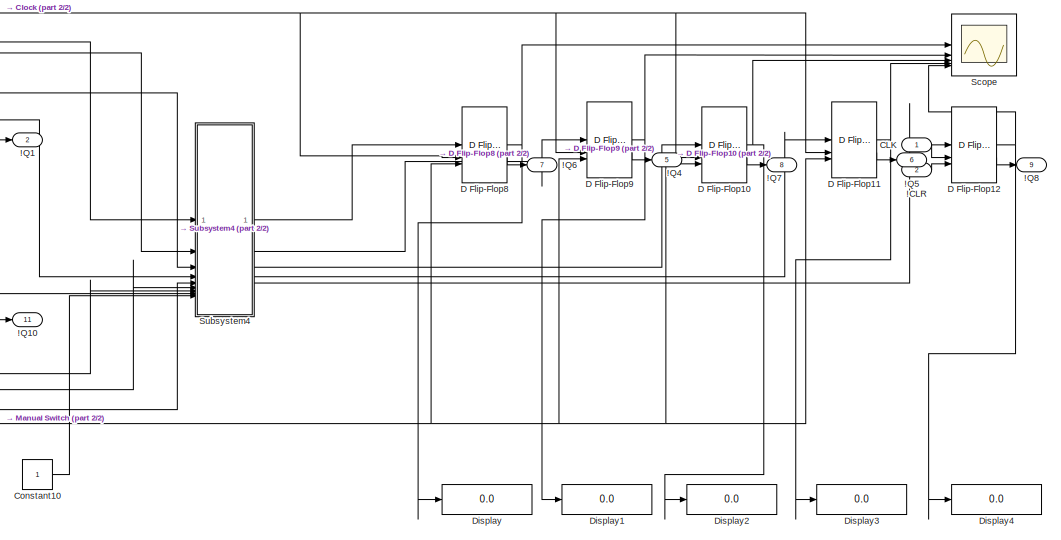
[diagram: root canvas - part 1/2, right side, full height]
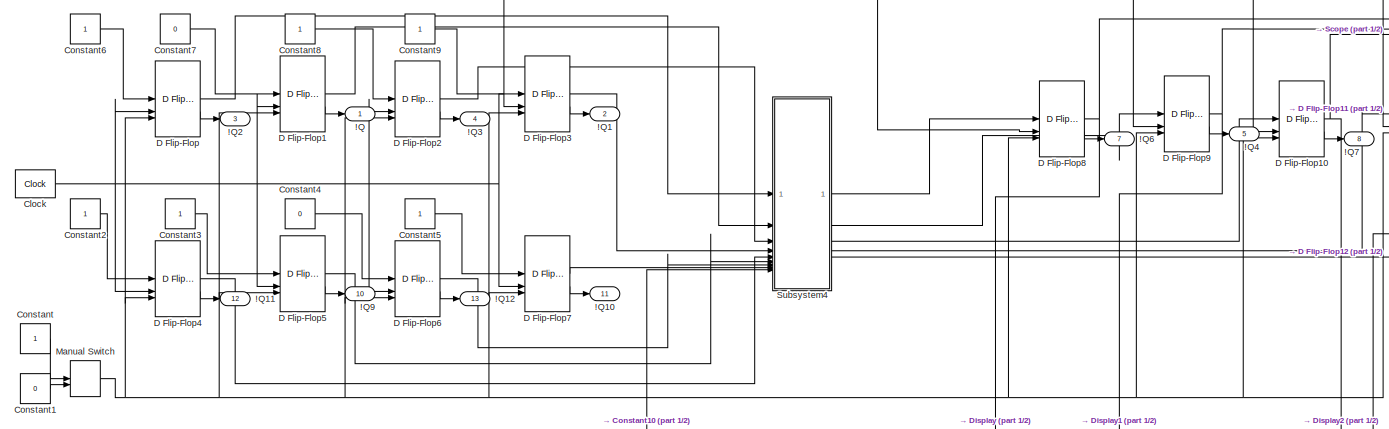
[diagram: root canvas - part 2/2, most of the canvas]
MODEL slx_1d598019fac1
KIND model
CONFIG AbsTol = auto
CONFIG EnableMultiTasking = off
CONFIG FixedStep = auto
CONFIG MaxStep = auto
CONFIG MinStep = auto
CONFIG RelTol = 1e-3
CONFIG SampleTimeConstraint = Unconstrained
CONFIG SolverName = VariableStepAuto
CONFIG StartTime = 0.0
CONFIG StopTime = 10.0
BLOCK [Inport] !CLR
  Port = 2
BLOCK [Outport] !Q
BLOCK [Outport] !Q1
  Port = 2
BLOCK [Outport] !Q10
  Port = 11
BLOCK [Outport] !Q11
  Port = 12
BLOCK [Outport] !Q12
  Port = 13
BLOCK [Outport] !Q2
  Port = 3
BLOCK [Outport] !Q3
  Port = 4
BLOCK [Outport] !Q4
  Port = 5
BLOCK [Outport] !Q5
  Port = 6
BLOCK [Outport] !Q6
  Port = 7
BLOCK [Outport] !Q7
  Port = 8
BLOCK [Outport] !Q8
  Port = 9
BLOCK [Outport] !Q9
  Port = 10
BLOCK [Inport] CLK
BLOCK [Reference] Clock  REF=simulink_extras/Flip Flops/Clock
  SourceBlock = simulink_extras/Flip Flops/Clock
  SourceType = Digital clock
BLOCK [Constant] Constant
  OutDataTypeStr = boolean
BLOCK [Constant] Constant1
  OutDataTypeStr = boolean
  Value = 0
BLOCK [Constant] Constant10
  OutDataTypeStr = boolean
BLOCK [Constant] Constant2
  OutDataTypeStr = boolean
BLOCK [Constant] Constant3
  OutDataTypeStr = boolean
BLOCK [Constant] Constant4
  OutDataTypeStr = boolean
  Value = 0
BLOCK [Constant] Constant5
  OutDataTypeStr = boolean
BLOCK [Constant] Constant6
  OutDataTypeStr = boolean
BLOCK [Constant] Constant7
  OutDataTypeStr = boolean
  Value = 0
BLOCK [Constant] Constant8
  OutDataTypeStr = boolean
BLOCK [Constant] Constant9
  OutDataTypeStr = boolean
BLOCK [Reference] D Flip-Flop  REF=simulink_extras/Flip Flops/D Flip-Flop
  SourceBlock = simulink_extras/Flip Flops/D Flip-Flop
  SourceType = DFlipFlop
BLOCK [Reference] D Flip-Flop1  REF=simulink_extras/Flip Flops/D Flip-Flop
  SourceBlock = simulink_extras/Flip Flops/D Flip-Flop
  SourceType = DFlipFlop
BLOCK [Reference] D Flip-Flop10  REF=simulink_extras/Flip Flops/D Flip-Flop
  SourceBlock = simulink_extras/Flip Flops/D Flip-Flop
  SourceType = DFlipFlop
BLOCK [Reference] D Flip-Flop11  REF=simulink_extras/Flip Flops/D Flip-Flop
  SourceBlock = simulink_extras/Flip Flops/D Flip-Flop
  SourceType = DFlipFlop
BLOCK [Reference] D Flip-Flop12  REF=simulink_extras/Flip Flops/D Flip-Flop
  SourceBlock = simulink_extras/Flip Flops/D Flip-Flop
  SourceType = DFlipFlop
BLOCK [Reference] D Flip-Flop2  REF=simulink_extras/Flip Flops/D Flip-Flop
  SourceBlock = simulink_extras/Flip Flops/D Flip-Flop
  SourceType = DFlipFlop
BLOCK [Reference] D Flip-Flop3  REF=simulink_extras/Flip Flops/D Flip-Flop
  SourceBlock = simulink_extras/Flip Flops/D Flip-Flop
  SourceType = DFlipFlop
BLOCK [Reference] D Flip-Flop4  REF=simulink_extras/Flip Flops/D Flip-Flop
  SourceBlock = simulink_extras/Flip Flops/D Flip-Flop
  SourceType = DFlipFlop
BLOCK [Reference] D Flip-Flop5  REF=simulink_extras/Flip Flops/D Flip-Flop
  SourceBlock = simulink_extras/Flip Flops/D Flip-Flop
  SourceType = DFlipFlop
BLOCK [Reference] D Flip-Flop6  REF=simulink_extras/Flip Flops/D Flip-Flop
  SourceBlock = simulink_extras/Flip Flops/D Flip-Flop
  SourceType = DFlipFlop
BLOCK [Reference] D Flip-Flop7  REF=simulink_extras/Flip Flops/D Flip-Flop
  SourceBlock = simulink_extras/Flip Flops/D Flip-Flop
  SourceType = DFlipFlop
BLOCK [Reference] D Flip-Flop8  REF=simulink_extras/Flip Flops/D Flip-Flop
  SourceBlock = simulink_extras/Flip Flops/D Flip-Flop
  SourceType = DFlipFlop
BLOCK [Reference] D Flip-Flop9  REF=simulink_extras/Flip Flops/D Flip-Flop
  SourceBlock = simulink_extras/Flip Flops/D Flip-Flop
  SourceType = DFlipFlop
BLOCK [Display] Display
  Decimation = 1
BLOCK [Display] Display1
  Decimation = 1
BLOCK [Display] Display2
  Decimation = 1
BLOCK [Display] Display3
  Decimation = 1
BLOCK [Display] Display4
  Decimation = 1
BLOCK [ManualSwitch] Manual Switch
BLOCK [Scope] Scope
  Floating = off
  NumInputPorts = 5
  ScopeSpecificationString = Simulink.scopes.TimeScopeBlockCfg('CurrentConfiguration', extmgr.ConfigurationSet(extmgr.Configuration('Core','General UI',true),extmgr.Configuration('Core','Source UI',true),extmgr.Configuration('Sources','WiredSimulink',true),extmgr.Configuration('Visuals','Time Domain',true,'SerializedDisplays',{struct('MinYLimReal','-0.125','MaxYLimReal','1.125','YLabelReal','','MinYLimMag','0.00000','MaxYLimM...<+6177ch>
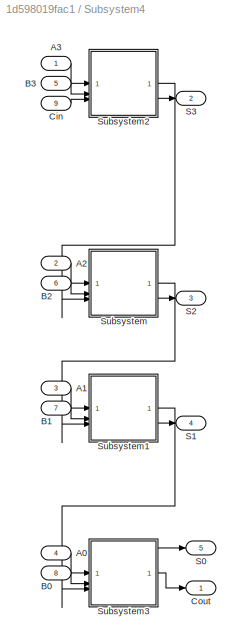
BLOCK [SubSystem] Subsystem4
BLOCK [Inport] Subsystem4/A0
  Port = 4
BLOCK [Inport] Subsystem4/A1
  Port = 3
BLOCK [Inport] Subsystem4/A2
  Port = 2
BLOCK [Inport] Subsystem4/A3
BLOCK [Inport] Subsystem4/B0
  Port = 8
BLOCK [Inport] Subsystem4/B1
  Port = 7
BLOCK [Inport] Subsystem4/B2
  Port = 6
BLOCK [Inport] Subsystem4/B3
  Port = 5
BLOCK [Inport] Subsystem4/Cin
  Port = 9
BLOCK [Outport] Subsystem4/Cout
BLOCK [Outport] Subsystem4/S0
  Port = 5
BLOCK [Outport] Subsystem4/S1
  Port = 4
BLOCK [Outport] Subsystem4/S2
  Port = 3
BLOCK [Outport] Subsystem4/S3
  Port = 2
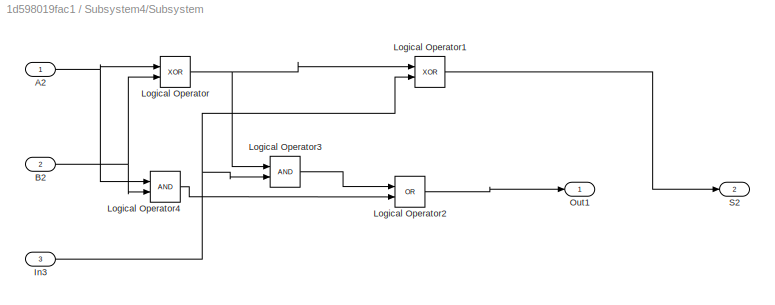
BLOCK [SubSystem] Subsystem4/Subsystem
BLOCK [Inport] Subsystem4/Subsystem/A2
BLOCK [Inport] Subsystem4/Subsystem/B2
  Port = 2
BLOCK [Inport] Subsystem4/Subsystem/In3
  Port = 3
BLOCK [Logic] Subsystem4/Subsystem/Logical Operator
  AllPortsSameDT = off
  Operator = XOR
  OutDataTypeStr = boolean
BLOCK [Logic] Subsystem4/Subsystem/Logical Operator1
  AllPortsSameDT = off
  Operator = XOR
  OutDataTypeStr = boolean
BLOCK [Logic] Subsystem4/Subsystem/Logical Operator2
  AllPortsSameDT = off
  Operator = OR
  OutDataTypeStr = boolean
BLOCK [Logic] Subsystem4/Subsystem/Logical Operator3
  AllPortsSameDT = off
  OutDataTypeStr = boolean
BLOCK [Logic] Subsystem4/Subsystem/Logical Operator4
  AllPortsSameDT = off
  OutDataTypeStr = boolean
BLOCK [Outport] Subsystem4/Subsystem/Out1
BLOCK [Outport] Subsystem4/Subsystem/S2
  Port = 2
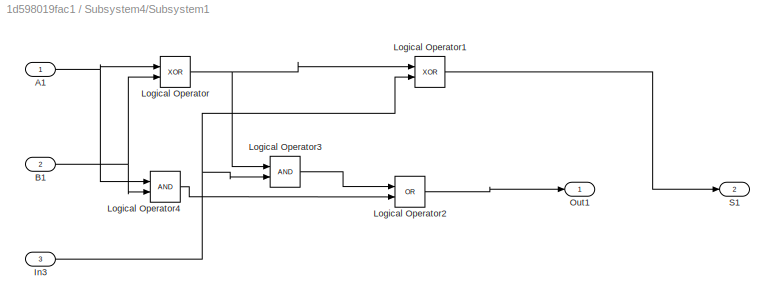
BLOCK [SubSystem] Subsystem4/Subsystem1
BLOCK [Inport] Subsystem4/Subsystem1/A1
BLOCK [Inport] Subsystem4/Subsystem1/B1
  Port = 2
BLOCK [Inport] Subsystem4/Subsystem1/In3
  Port = 3
BLOCK [Logic] Subsystem4/Subsystem1/Logical Operator
  AllPortsSameDT = off
  Operator = XOR
  OutDataTypeStr = boolean
BLOCK [Logic] Subsystem4/Subsystem1/Logical Operator1
  AllPortsSameDT = off
  Operator = XOR
  OutDataTypeStr = boolean
BLOCK [Logic] Subsystem4/Subsystem1/Logical Operator2
  AllPortsSameDT = off
  Operator = OR
  OutDataTypeStr = boolean
BLOCK [Logic] Subsystem4/Subsystem1/Logical Operator3
  AllPortsSameDT = off
  OutDataTypeStr = boolean
BLOCK [Logic] Subsystem4/Subsystem1/Logical Operator4
  AllPortsSameDT = off
  OutDataTypeStr = boolean
BLOCK [Outport] Subsystem4/Subsystem1/Out1
BLOCK [Outport] Subsystem4/Subsystem1/S1
  Port = 2
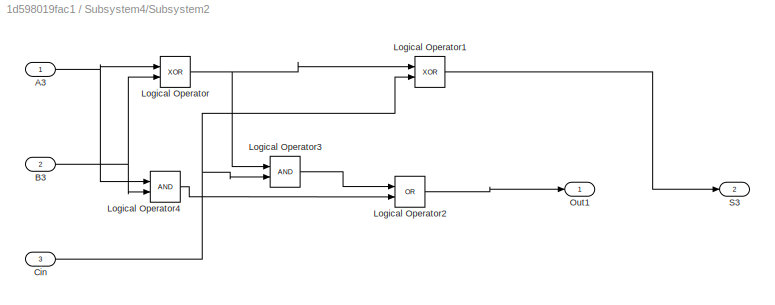
BLOCK [SubSystem] Subsystem4/Subsystem2
BLOCK [Inport] Subsystem4/Subsystem2/A3
BLOCK [Inport] Subsystem4/Subsystem2/B3
  Port = 2
BLOCK [Inport] Subsystem4/Subsystem2/Cin
  Port = 3
BLOCK [Logic] Subsystem4/Subsystem2/Logical Operator
  AllPortsSameDT = off
  Operator = XOR
  OutDataTypeStr = boolean
BLOCK [Logic] Subsystem4/Subsystem2/Logical Operator1
  AllPortsSameDT = off
  Operator = XOR
  OutDataTypeStr = boolean
BLOCK [Logic] Subsystem4/Subsystem2/Logical Operator2
  AllPortsSameDT = off
  Operator = OR
  OutDataTypeStr = boolean
BLOCK [Logic] Subsystem4/Subsystem2/Logical Operator3
  AllPortsSameDT = off
  OutDataTypeStr = boolean
BLOCK [Logic] Subsystem4/Subsystem2/Logical Operator4
  AllPortsSameDT = off
  OutDataTypeStr = boolean
BLOCK [Outport] Subsystem4/Subsystem2/Out1
BLOCK [Outport] Subsystem4/Subsystem2/S3
  Port = 2
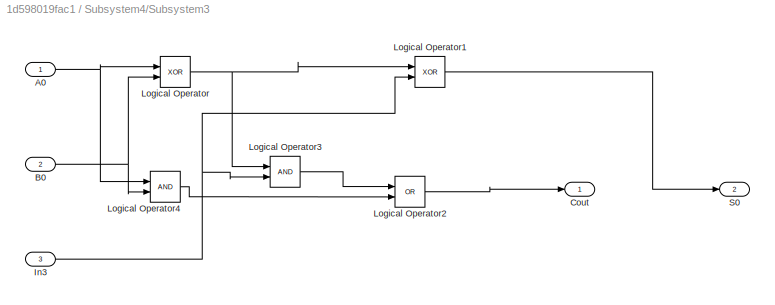
BLOCK [SubSystem] Subsystem4/Subsystem3
BLOCK [Inport] Subsystem4/Subsystem3/A0
BLOCK [Inport] Subsystem4/Subsystem3/B0
  Port = 2
BLOCK [Outport] Subsystem4/Subsystem3/Cout
BLOCK [Inport] Subsystem4/Subsystem3/In3
  Port = 3
BLOCK [Logic] Subsystem4/Subsystem3/Logical Operator
  AllPortsSameDT = off
  Operator = XOR
  OutDataTypeStr = boolean
BLOCK [Logic] Subsystem4/Subsystem3/Logical Operator1
  AllPortsSameDT = off
  Operator = XOR
  OutDataTypeStr = boolean
BLOCK [Logic] Subsystem4/Subsystem3/Logical Operator2
  AllPortsSameDT = off
  Operator = OR
  OutDataTypeStr = boolean
BLOCK [Logic] Subsystem4/Subsystem3/Logical Operator3
  AllPortsSameDT = off
  OutDataTypeStr = boolean
BLOCK [Logic] Subsystem4/Subsystem3/Logical Operator4
  AllPortsSameDT = off
  OutDataTypeStr = boolean
BLOCK [Outport] Subsystem4/Subsystem3/S0
  Port = 2
LINE !CLR:1 -> D Flip-Flop12:3
LINE CLK:1 -> D Flip-Flop12:2
NET Clock:1 -> D Flip-Flop10:2, D Flip-Flop11:2, D Flip-Flop1:2, D Flip-Flop2:2, D Flip-Flop3:2, D Flip-Flop4:2, D Flip-Flop5:2, D Flip-Flop6:2, D Flip-Flop7:2, D Flip-Flop8:2, D Flip-Flop9:2, D Flip-Flop:2
LINE Constant10:1 -> Subsystem4:9
LINE Constant1:1 -> Manual Switch:2
LINE Constant2:1 -> D Flip-Flop4:1
LINE Constant3:1 -> D Flip-Flop5:1
LINE Constant4:1 -> D Flip-Flop6:1
LINE Constant5:1 -> D Flip-Flop7:1
LINE Constant6:1 -> D Flip-Flop:1
LINE Constant7:1 -> D Flip-Flop1:1
LINE Constant8:1 -> D Flip-Flop2:1
LINE Constant9:1 -> D Flip-Flop3:1
LINE Constant:1 -> Manual Switch:1
NET D Flip-Flop10:1 -> Display2:1, Scope:3
LINE D Flip-Flop10:2 -> !Q7:1
NET D Flip-Flop11:1 -> Display3:1, Scope:4
LINE D Flip-Flop11:2 -> !Q5:1
NET D Flip-Flop12:1 -> Display4:1, Scope:5
LINE D Flip-Flop12:2 -> !Q8:1
LINE D Flip-Flop1:1 -> Subsystem4:2
LINE D Flip-Flop1:2 -> !Q:1
LINE D Flip-Flop2:1 -> Subsystem4:3
LINE D Flip-Flop2:2 -> !Q3:1
LINE D Flip-Flop3:1 -> Subsystem4:4
LINE D Flip-Flop3:2 -> !Q1:1
LINE D Flip-Flop4:1 -> Subsystem4:5
LINE D Flip-Flop4:2 -> !Q11:1
LINE D Flip-Flop5:1 -> Subsystem4:6
LINE D Flip-Flop5:2 -> !Q9:1
LINE D Flip-Flop6:1 -> Subsystem4:7
LINE D Flip-Flop6:2 -> !Q12:1
LINE D Flip-Flop7:1 -> Subsystem4:8
LINE D Flip-Flop7:2 -> !Q10:1
NET D Flip-Flop8:1 -> Display:1, Scope:1
LINE D Flip-Flop8:2 -> !Q6:1
NET D Flip-Flop9:1 -> Display1:1, Scope:2
LINE D Flip-Flop9:2 -> !Q4:1
LINE D Flip-Flop:1 -> Subsystem4:1
LINE D Flip-Flop:2 -> !Q2:1
NET Manual Switch:1 -> D Flip-Flop10:3, D Flip-Flop11:3, D Flip-Flop1:3, D Flip-Flop2:3, D Flip-Flop3:3, D Flip-Flop4:3, D Flip-Flop5:3, D Flip-Flop6:3, D Flip-Flop7:3, D Flip-Flop8:3, D Flip-Flop9:3, D Flip-Flop:3
LINE Subsystem4/A0:1 -> Subsystem4/Subsystem3:1
LINE Subsystem4/A1:1 -> Subsystem4/Subsystem1:1
LINE Subsystem4/A2:1 -> Subsystem4/Subsystem:1
LINE Subsystem4/A3:1 -> Subsystem4/Subsystem2:1
LINE Subsystem4/B0:1 -> Subsystem4/Subsystem3:2
LINE Subsystem4/B1:1 -> Subsystem4/Subsystem1:2
LINE Subsystem4/B2:1 -> Subsystem4/Subsystem:2
LINE Subsystem4/B3:1 -> Subsystem4/Subsystem2:2
LINE Subsystem4/Cin:1 -> Subsystem4/Subsystem2:3
NET Subsystem4/Subsystem/A2:1 -> Subsystem4/Subsystem/Logical Operator4:1, Subsystem4/Subsystem/Logical Operator:1
NET Subsystem4/Subsystem/B2:1 -> Subsystem4/Subsystem/Logical Operator4:2, Subsystem4/Subsystem/Logical Operator:2
NET Subsystem4/Subsystem/In3:1 -> Subsystem4/Subsystem/Logical Operator1:2, Subsystem4/Subsystem/Logical Operator3:2
LINE Subsystem4/Subsystem/Logical Operator1:1 -> Subsystem4/Subsystem/S2:1
LINE Subsystem4/Subsystem/Logical Operator2:1 -> Subsystem4/Subsystem/Out1:1
LINE Subsystem4/Subsystem/Logical Operator3:1 -> Subsystem4/Subsystem/Logical Operator2:1
LINE Subsystem4/Subsystem/Logical Operator4:1 -> Subsystem4/Subsystem/Logical Operator2:2
NET Subsystem4/Subsystem/Logical Operator:1 -> Subsystem4/Subsystem/Logical Operator1:1, Subsystem4/Subsystem/Logical Operator3:1
NET Subsystem4/Subsystem1/A1:1 -> Subsystem4/Subsystem1/Logical Operator4:1, Subsystem4/Subsystem1/Logical Operator:1
NET Subsystem4/Subsystem1/B1:1 -> Subsystem4/Subsystem1/Logical Operator4:2, Subsystem4/Subsystem1/Logical Operator:2
NET Subsystem4/Subsystem1/In3:1 -> Subsystem4/Subsystem1/Logical Operator1:2, Subsystem4/Subsystem1/Logical Operator3:2
LINE Subsystem4/Subsystem1/Logical Operator1:1 -> Subsystem4/Subsystem1/S1:1
LINE Subsystem4/Subsystem1/Logical Operator2:1 -> Subsystem4/Subsystem1/Out1:1
LINE Subsystem4/Subsystem1/Logical Operator3:1 -> Subsystem4/Subsystem1/Logical Operator2:1
LINE Subsystem4/Subsystem1/Logical Operator4:1 -> Subsystem4/Subsystem1/Logical Operator2:2
NET Subsystem4/Subsystem1/Logical Operator:1 -> Subsystem4/Subsystem1/Logical Operator1:1, Subsystem4/Subsystem1/Logical Operator3:1
LINE Subsystem4/Subsystem1:1 -> Subsystem4/Subsystem3:3
LINE Subsystem4/Subsystem1:2 -> Subsystem4/S1:1
NET Subsystem4/Subsystem2/A3:1 -> Subsystem4/Subsystem2/Logical Operator4:1, Subsystem4/Subsystem2/Logical Operator:1
NET Subsystem4/Subsystem2/B3:1 -> Subsystem4/Subsystem2/Logical Operator4:2, Subsystem4/Subsystem2/Logical Operator:2
NET Subsystem4/Subsystem2/Cin:1 -> Subsystem4/Subsystem2/Logical Operator1:2, Subsystem4/Subsystem2/Logical Operator3:2
LINE Subsystem4/Subsystem2/Logical Operator1:1 -> Subsystem4/Subsystem2/S3:1
LINE Subsystem4/Subsystem2/Logical Operator2:1 -> Subsystem4/Subsystem2/Out1:1
LINE Subsystem4/Subsystem2/Logical Operator3:1 -> Subsystem4/Subsystem2/Logical Operator2:1
LINE Subsystem4/Subsystem2/Logical Operator4:1 -> Subsystem4/Subsystem2/Logical Operator2:2
NET Subsystem4/Subsystem2/Logical Operator:1 -> Subsystem4/Subsystem2/Logical Operator1:1, Subsystem4/Subsystem2/Logical Operator3:1
LINE Subsystem4/Subsystem2:1 -> Subsystem4/Subsystem:3
LINE Subsystem4/Subsystem2:2 -> Subsystem4/S3:1
NET Subsystem4/Subsystem3/A0:1 -> Subsystem4/Subsystem3/Logical Operator4:1, Subsystem4/Subsystem3/Logical Operator:1
NET Subsystem4/Subsystem3/B0:1 -> Subsystem4/Subsystem3/Logical Operator4:2, Subsystem4/Subsystem3/Logical Operator:2
NET Subsystem4/Subsystem3/In3:1 -> Subsystem4/Subsystem3/Logical Operator1:2, Subsystem4/Subsystem3/Logical Operator3:2
LINE Subsystem4/Subsystem3/Logical Operator1:1 -> Subsystem4/Subsystem3/S0:1
LINE Subsystem4/Subsystem3/Logical Operator2:1 -> Subsystem4/Subsystem3/Cout:1
LINE Subsystem4/Subsystem3/Logical Operator3:1 -> Subsystem4/Subsystem3/Logical Operator2:1
LINE Subsystem4/Subsystem3/Logical Operator4:1 -> Subsystem4/Subsystem3/Logical Operator2:2
NET Subsystem4/Subsystem3/Logical Operator:1 -> Subsystem4/Subsystem3/Logical Operator1:1, Subsystem4/Subsystem3/Logical Operator3:1
LINE Subsystem4/Subsystem3:1 -> Subsystem4/Cout:1
LINE Subsystem4/Subsystem3:2 -> Subsystem4/S0:1
LINE Subsystem4/Subsystem:1 -> Subsystem4/Subsystem1:3
LINE Subsystem4/Subsystem:2 -> Subsystem4/S2:1
LINE Subsystem4:1 -> D Flip-Flop8:1
LINE Subsystem4:2 -> D Flip-Flop9:1
LINE Subsystem4:3 -> D Flip-Flop10:1
LINE Subsystem4:4 -> D Flip-Flop11:1
LINE Subsystem4:5 -> D Flip-Flop12:1
note: NET lines group one-source signal fan-out (src -> all destinations, sorted); 1:1 wires keep LINE
